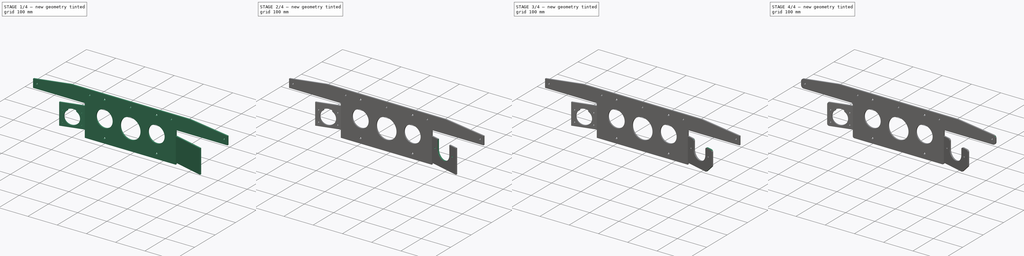
[diagram: build sequence overview — one tinted view per stage of 4, left to right]
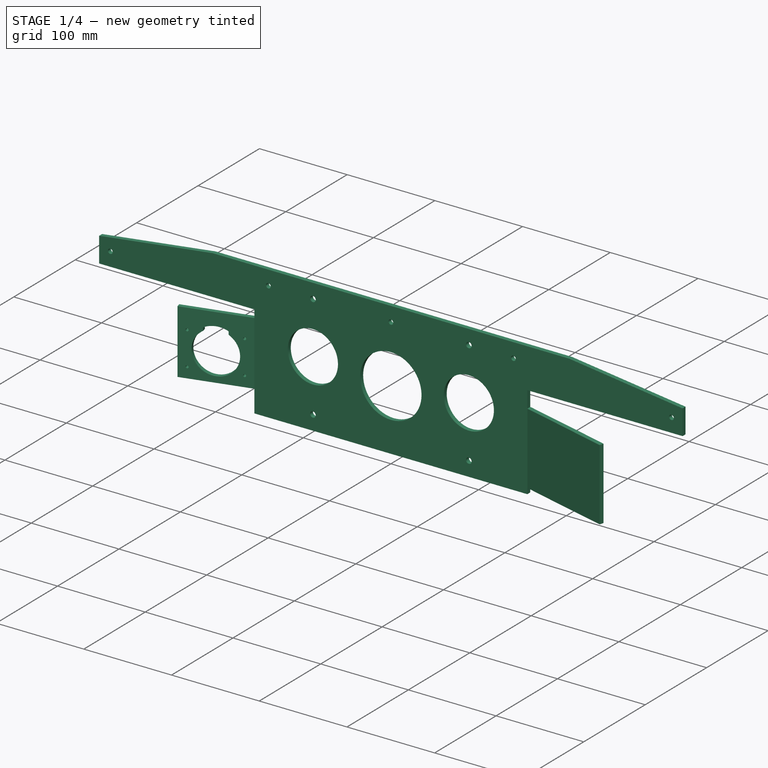
[diagram: stage 1 of 4 — iso view after this stage's code; geometry added in this stage tinted green]
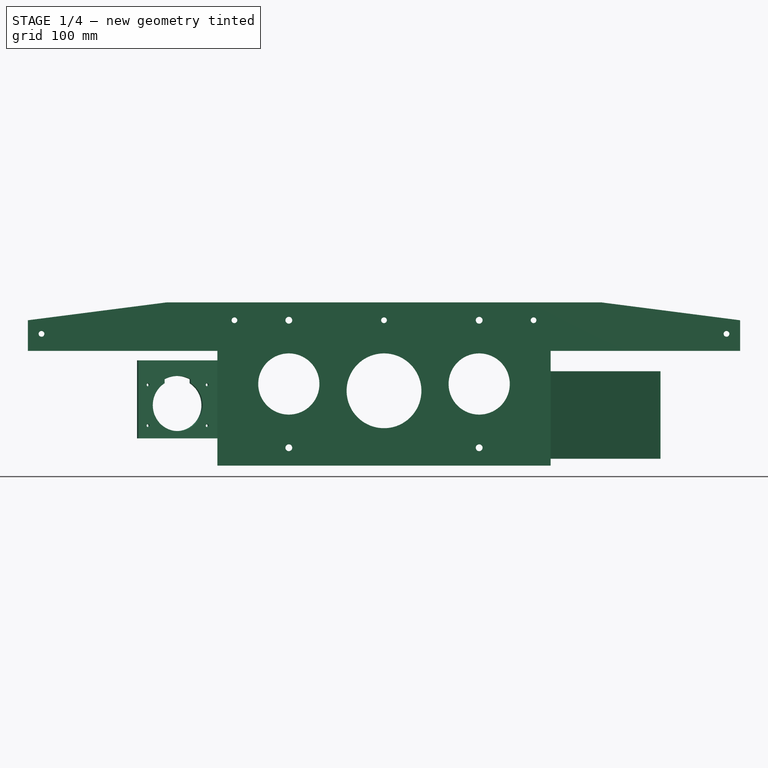
[diagram: stage 1 of 4 — front view after this stage's code; geometry added in this stage tinted green]
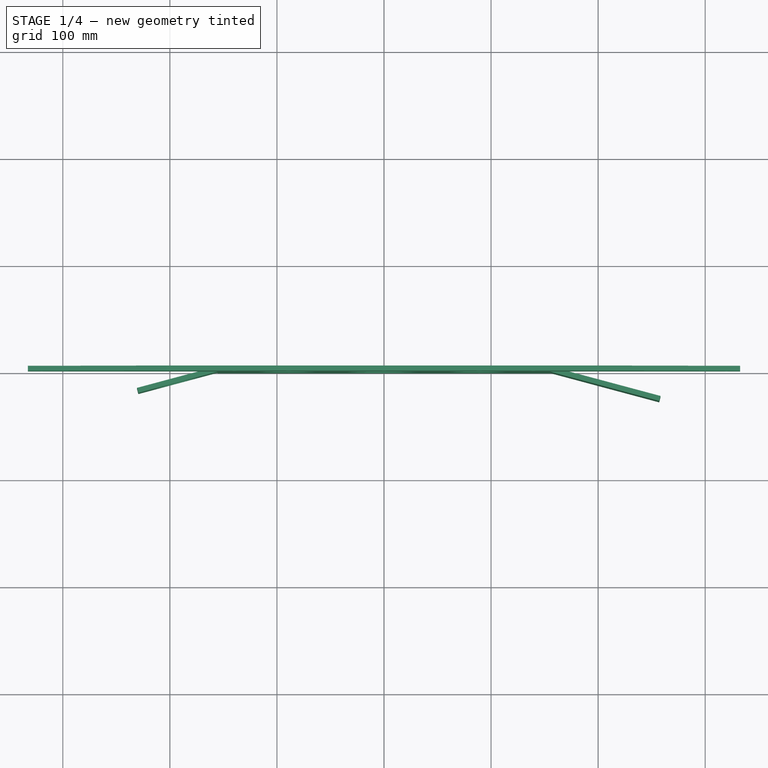
[diagram: stage 1 of 4 — top view after this stage's code; geometry added in this stage tinted green]
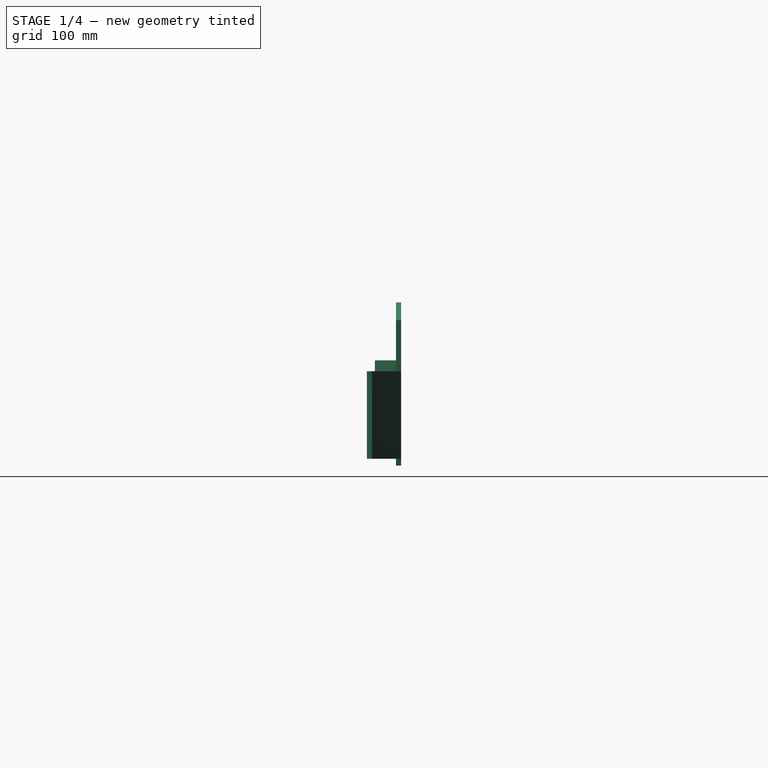
[diagram: stage 1 of 4 — right view after this stage's code; geometry added in this stage tinted green]
FCSTD DOCUMENT  (FreeCAD 2023.131R26244 +5365 (Git))
Label: dodge licence plate plugs holderr
License: All rights reserved
LicenseURL: http://en.wikipedia.org/wiki/All_rights_reserved
objects: PartDesign::Fillet×5, Sketcher::SketchObject×3, PartDesign::FeaturePython×3, PartDesign::Pocket×3, PartDesign::Hole×2, PartDesign::Chamfer×1, PartDesign::Body×1
note: 46 computed .brp shape members not serialized (recipe doc carries the construction recipe); baked Part::Feature solids carry a one-line shape summary decoded from their .brp

FEATURE [Sketcher::SketchObject] Sketch
  ArcFitTolerance = 1e-06
  AttachmentSupport = -> [XZ_Plane]
  ExternalBSplineMaxDegree = 5
  ExternalBSplineTolerance = 0.0001
  FixShape = 1
  FullyConstrained = false
  InternalTolerance = 1e-06
  InvalidShape = false
  MakeInternals = false
  MapMode = 5
  Placement = pos=(0,0,0) rot=(1,0,0;1.5708rad)
  Support = -> [XZ_Plane]
  TreeRank = 13
  ValidateShape = false
  sketch-geometry (25):
    g0: Circle CenterX=0 CenterY=28.575 CenterZ=0 NormalX=0 NormalY=0 NormalZ=1 AngleXU=0 Radius=2.667
    g1: Circle CenterX=-139.7 CenterY=28.575 CenterZ=0 NormalX=0 NormalY=0 NormalZ=1 AngleXU=0 Radius=2.667
    g2: Circle CenterX=139.7 CenterY=28.575 CenterZ=0 NormalX=0 NormalY=0 NormalZ=1 AngleXU=0 Radius=2.667
    g3: Circle CenterX=-319.888 CenterY=15.875 CenterZ=0 NormalX=0 NormalY=0 NormalZ=1 AngleXU=0 Radius=2.667
    g4: Circle CenterX=319.888 CenterY=15.875 CenterZ=0 NormalX=0 NormalY=0 NormalZ=1 AngleXU=0 Radius=2.667
    g5: Circle CenterX=-88.9 CenterY=28.575 CenterZ=0 NormalX=0 NormalY=0 NormalZ=1 AngleXU=0 Radius=3.175
    g6: Circle CenterX=88.9 CenterY=28.575 CenterZ=0 NormalX=0 NormalY=0 NormalZ=1 AngleXU=0 Radius=3.175
    g7: Circle CenterX=88.9 CenterY=-90.5002 CenterZ=0 NormalX=0 NormalY=0 NormalZ=1 AngleXU=0 Radius=3.175
    g8: Circle CenterX=-88.9 CenterY=-90.5002 CenterZ=0 NormalX=0 NormalY=0 NormalZ=1 AngleXU=0 Radius=3.175
    g9: LineSegment StartX=-332.588 StartY=28.575 StartZ=0 EndX=-332.588 EndY=0 EndZ=0
    g10: LineSegment StartX=-332.588 StartY=0 StartZ=0 EndX=-155.575 EndY=0 EndZ=0
    g11: LineSegment StartX=-155.575 StartY=0 StartZ=0 EndX=-155.575 EndY=-107.163 EndZ=0
    g12: LineSegment StartX=-155.575 StartY=-107.163 StartZ=0 EndX=155.575 EndY=-107.163 EndZ=0
    g13: LineSegment StartX=155.575 StartY=-107.163 StartZ=0 EndX=155.575 EndY=0 EndZ=0
    g14: LineSegment StartX=155.575 StartY=0 StartZ=0 EndX=332.588 EndY=0 EndZ=0
    g15: LineSegment StartX=332.588 StartY=0 StartZ=0 EndX=332.588 EndY=28.575 EndZ=0
    g16: LineSegment [constr] StartX=-88.9 StartY=-90.5002 StartZ=0 EndX=-88.9 EndY=-107.163 EndZ=0
    g17: LineSegment [constr] StartX=-88.9 StartY=28.575 StartZ=0 EndX=-88.9 EndY=45.2374 EndZ=0
    g18: LineSegment StartX=-203.2 StartY=45.2374 StartZ=0 EndX=-332.588 EndY=28.575 EndZ=0
    g19: LineSegment StartX=332.588 StartY=28.575 StartZ=0 EndX=203.2 EndY=45.2374 EndZ=0
    g20: LineSegment StartX=203.2 StartY=45.2374 StartZ=0 EndX=-203.2 EndY=45.2374 EndZ=0
    g21: Circle CenterX=-88.9 CenterY=-30.9626 CenterZ=0 NormalX=0 NormalY=0 NormalZ=1 AngleXU=0 Radius=28.575
    g22: Circle CenterX=0 CenterY=-37.3126 CenterZ=0 NormalX=0 NormalY=0 NormalZ=1 AngleXU=0 Radius=34.925
    g23: Circle CenterX=88.9 CenterY=-30.9626 CenterZ=0 NormalX=0 NormalY=0 NormalZ=1 AngleXU=0 Radius=28.575
    g24: LineSegment [constr] StartX=-222.052 StartY=-30.9626 StartZ=0 EndX=256.665 EndY=-30.9626 EndZ=0
  constraints (65):
    c: PointOnObject(g0,g-2)
    c: Equal(g3,g1)
    c: Equal(g1,g0)
    c: Equal(g0,g2)
    c: Equal(g2,g4)
    c: Diameter(g2) = 5.334
    c: Symmetric(g1,g2,g0)
    c: Horizontal(g2,g1)
    c: Symmetric(g3,g4,g-2)
    c: Distance(g-1,g0) = 28.575
    c: DistanceY(g-1,g4) = 15.875
    c: Distance(g2,g0) = 139.7
    c: Distance(g3,g4) = 639.775
    c: Symmetric(g5,g6,g-2)
    c: Vertical(g6,g7)
    c: Horizontal(g7,g8)
    c: Vertical(g8,g5)
    c: Equal(g8,g7)
    c: Equal(g7,g6)
    c: Equal(g6,g5)
    c: Distance(g5,g6) = 177.8
    c: Distance(g6,g7) = 119.075
    c: Horizontal(g6,g2)
    c: Diameter(g5) = 6.35
    c: Coincident(g9,g10)
    c: Coincident(g10,g11)
    c: Coincident(g11,g12)
    c: Coincident(g12,g13)
    c: Coincident(g13,g14)
    c: Coincident(g14,g15)
    c: Coincident(g15,g19)
    c: Coincident(g18,g9)
    c: Vertical(g9)
    c: Horizontal(g10)
    c: Horizontal(g12)
    c: Vertical(g13)
    c: Vertical(g11)
    c: Symmetric(g14,g9,g-2)
    c: Symmetric(g10,g13,g-2)
    c: Distance(g12) = 311.15
    c: Coincident(g16,g8)
    c: PointOnObject(g16,g12)
    c: Coincident(g17,g5)
    c: Vertical(g17)
    c: Vertical(g16)
    c: Equal(g16,g17)
    c: PointOnObject(g10,g-1)
    c: Coincident(g20,g18)
    c: Coincident(g19,g20)
    c: Distance(g12,g20) = 152.4
    c: PointOnObject(g17,g20)
    c: Symmetric(g18,g19,g-2)
    c: Distance(g18,g19) = 406.4
    c: Distance(g9) = 28.575
    c: Distance(g3,g9) = 12.7
    c: PointOnObject(g22,g-2)
    c: Symmetric(g21,g23,g-2)
    c: Equal(g23,g21)
    c: PointOnObject(g21,g24)
    c: Symmetric(g5,g8,g24)
    c: Distance(g21,g23) = 177.8
    c: Diameter(g21) = 57.15
    c: Diameter(g22) = 69.85
    c: Distance(g22,g24) = 6.35
    c: Symmetric(g15,g9,g-2)
FEATURE [PartDesign::FeaturePython] BaseBend  # WARN: FeaturePython — macro-defined, semantics opaque (R4)
  BendSide = 0
  BendSketch = -> Sketch
  FixShape = 1
  InvalidShape = false
  MidPlane = false
  NewSolid = false
  Reverse = false
  Suppress = false
  TreeRank = 14
  ValidateShape = false
  length = 100
  radius = 1
  thickness = 4.7625
FEATURE [PartDesign::FeaturePython] Bend  # WARN: FeaturePython — macro-defined, semantics opaque (R4)
  AutoMiter = true
  BaseFeature = -> BaseBend
  BendType = 0
  FixShape = 1
  InvalidShape = false
  LengthList = [104.775]
  LengthSpec = 0
  NewSolid = false
  ReliefFactor = 0.7
  Suppress = false
  TreeRank = 15
  UseReliefFactor = false
  ValidateShape = false
  angle = 15
  baseObject = -> BaseBend [Face5]
  bendAList = [15]
  extend1 = 0
  extend2 = 0
  gap1 = 6.35
  gap2 = 19.05
  invert = true
  kfactor = 0.5
  length = 104.775
  maxExtendDist = 5
  minGap = 0.2
  minReliefGap = 1
  miterangle1 = 0
  miterangle2 = 0
  offset = 0
  radius = 1
  reliefType = 0
  reliefd = 0
  reliefw = 0
  sketchflip = false
  sketchinvert = false
  unfold = false
FEATURE [PartDesign::FeaturePython] Bend001  # WARN: FeaturePython — macro-defined, semantics opaque (R4)
  AutoMiter = true
  BaseFeature = -> Bend
  BendType = 0
  FixShape = 1
  InvalidShape = false
  LengthList = [76.2]
  LengthSpec = 0
  NewSolid = false
  ReliefFactor = 0.7
  Suppress = false
  TreeRank = 16
  UseReliefFactor = false
  ValidateShape = false
  angle = 15
  baseObject = -> Bend [Face7]
  bendAList = [15]
  extend1 = 0
  extend2 = 0
  gap1 = 8.89
  gap2 = 25.4
  invert = true
  kfactor = 0.5
  length = 76.2
  maxExtendDist = 5
  minGap = 0.2
  minReliefGap = 1
  miterangle1 = 0
  miterangle2 = 0
  offset = 0
  radius = 1
  reliefType = 0
  reliefd = 0
  reliefw = 0
  sketchflip = false
  sketchinvert = false
  unfold = false
FEATURE [Sketcher::SketchObject] Sketch001
  ArcFitTolerance = 1e-06
  AttachmentSupport = -> [Bend001]
  ExternalBSplineMaxDegree = 5
  ExternalBSplineTolerance = 0.0001
  ExternalGeometry = -> [Bend001]
  FixShape = 1
  FullyConstrained = true
  InternalTolerance = 1e-06
  InvalidShape = false
  MakeInternals = false
  MapMode = 5
  Placement = pos=(-10.4304,38.9267,-8.6e-15) rot=(0.983106,0.129428,0.129428;1.58783rad)
  Support = -> [Bend001]
  TreeRank = 17
  ValidateShape = false
  sketch-geometry (13):
    g0: ArcOfCircle CenterX=-188.633 CenterY=-50.8 CenterZ=0 NormalX=0 NormalY=0 NormalZ=1 AngleXU=0 Radius=24.13 StartAngle=2.12506 EndAngle=7.29972
    g1: Circle CenterX=-217.208 CenterY=-31.75 CenterZ=0 NormalX=0 NormalY=0 NormalZ=1 AngleXU=0 Radius=1.4859
    g2: Circle CenterX=-160.058 CenterY=-31.75 CenterZ=0 NormalX=0 NormalY=0 NormalZ=1 AngleXU=0 Radius=1.4859
    g3: Circle CenterX=-217.208 CenterY=-69.85 CenterZ=0 NormalX=0 NormalY=0 NormalZ=1 AngleXU=0 Radius=1.4859
    g4: Circle CenterX=-160.058 CenterY=-69.85 CenterZ=0 NormalX=0 NormalY=0 NormalZ=1 AngleXU=0 Radius=1.4859
    g5: ArcOfCircle CenterX=-188.633 CenterY=-50.8 CenterZ=0 NormalX=0 NormalY=0 NormalZ=1 AngleXU=0 Radius=27.305 StartAngle=1.08703 EndAngle=2.05456
    g6: LineSegment StartX=-175.933 StartY=-26.6283 StartZ=0 EndX=-175.933 EndY=-30.2825 EndZ=0
    g7: LineSegment StartX=-201.333 StartY=-26.6283 StartZ=0 EndX=-201.333 EndY=-30.2825 EndZ=0
    g8: LineSegment [constr] StartX=-224.193 StartY=-10.414 StartZ=0 EndX=-153.073 EndY=-10.414 EndZ=0
    g9: LineSegment [constr] StartX=-153.073 StartY=-10.414 StartZ=0 EndX=-153.073 EndY=-77.47 EndZ=0
    g10: LineSegment [constr] StartX=-153.073 StartY=-77.47 StartZ=0 EndX=-224.193 EndY=-77.47 EndZ=0
    g11: LineSegment [constr] StartX=-224.193 StartY=-77.47 StartZ=0 EndX=-224.193 EndY=-10.414 EndZ=0
    g12: GeomPoint [constr] X=-188.633 Y=-10.414 Z=0
  constraints (36):
    c: Vertical(g4,g2)
    c: Symmetric(g4,g1,g0)
    c: Symmetric(g2,g3,g0)
    c: Horizontal(g4,g3)
    c: Distance(g4,g3) = 57.15
    c: Distance(g4,g2) = 38.1
    c: Diameter(g0) = 48.26
    c: Equal(g3,g1)
    c: Equal(g1,g2)
    c: Equal(g2,g4)
    c: Coincident(g5,g0)
    c: Horizontal(g5,g5)
    c: Distance(g5,g5) = 25.4
    c: Diameter(g5) = 54.61
    c: Coincident(g6,g5)
    c: Coincident(g7,g5)
    c: Coincident(g0,g6)
    c: Coincident(g0,g7)
    c: Vertical(g7)
    c: Vertical(g6)
    c: DistanceY(g-1,g0) = -50.8
    c: Diameter(g2) = 2.9718
    c: Coincident(g8,g9)
    c: Coincident(g9,g10)
    c: Coincident(g10,g11)
    c: Coincident(g11,g8)
    c: Horizontal(g8)
    c: Horizontal(g10)
    c: Vertical(g9)
    c: Vertical(g11)
    c: Distance(g10) = 71.12
    c: Distance(g9) = 67.056
    c: Distance(g3,g10) = 7.62
    c: Symmetric(g8,g8,g12)
    c: Vertical(g12,g0)
    c: DistanceX(g8,g-3) = 2.54
FEATURE [PartDesign::Pocket] Pocket
  AddSubType = 1
  AutoTaperInnerAngle = true
  BaseFeature = -> Bend001
  CheckUpToFaceLimits = true
  ClaimChildren = false
  Fit = 0
  FitJoin = 0
  FixShape = 1
  InnerFit = 0
  InnerFitJoin = 0
  InvalidShape = false
  Length = 5
  Length2 = 100
  Linearize = true
  NewSolid = false
  Profile = -> Sketch001
  Suppress = false
  TaperInnerAngle = 0
  TaperInnerAngleRev = 0
  TreeRank = 18
  Type = 0
  ValidateShape = false
  _ProfileBasedVersion = 1
  _Version = 1
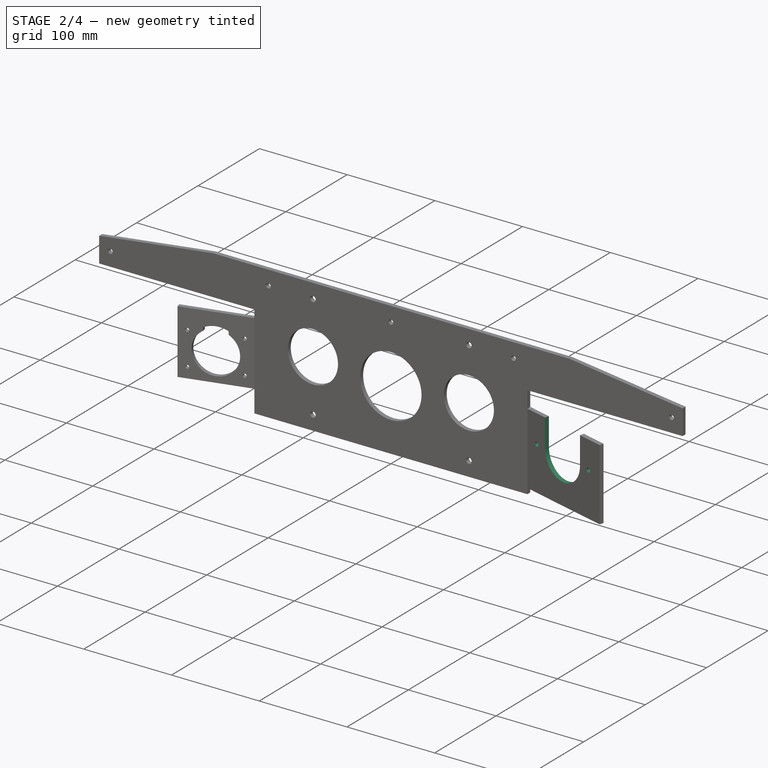
[diagram: stage 2 of 4 — iso view after this stage's code; geometry added in this stage tinted green]
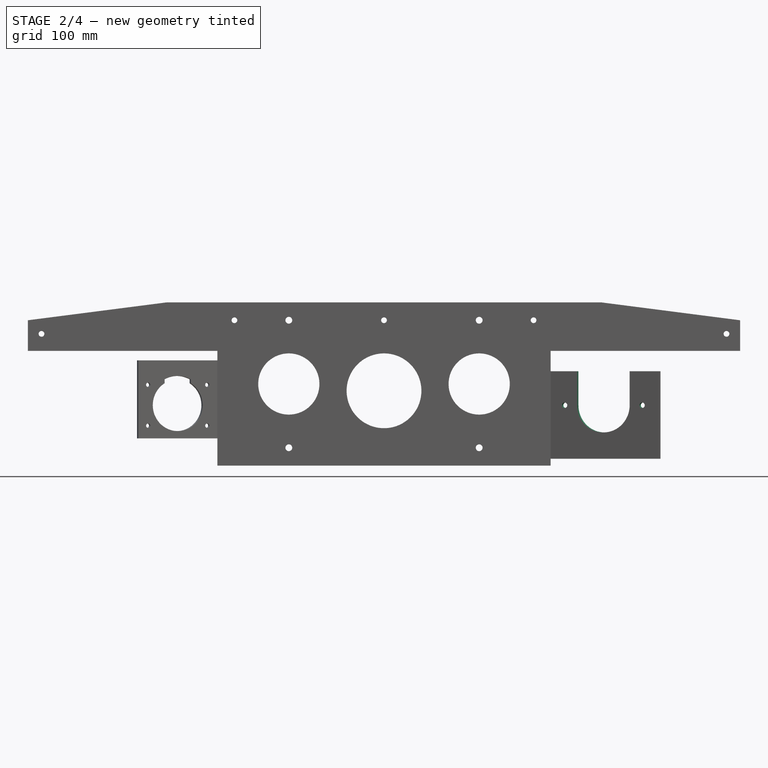
[diagram: stage 2 of 4 — front view after this stage's code; geometry added in this stage tinted green]
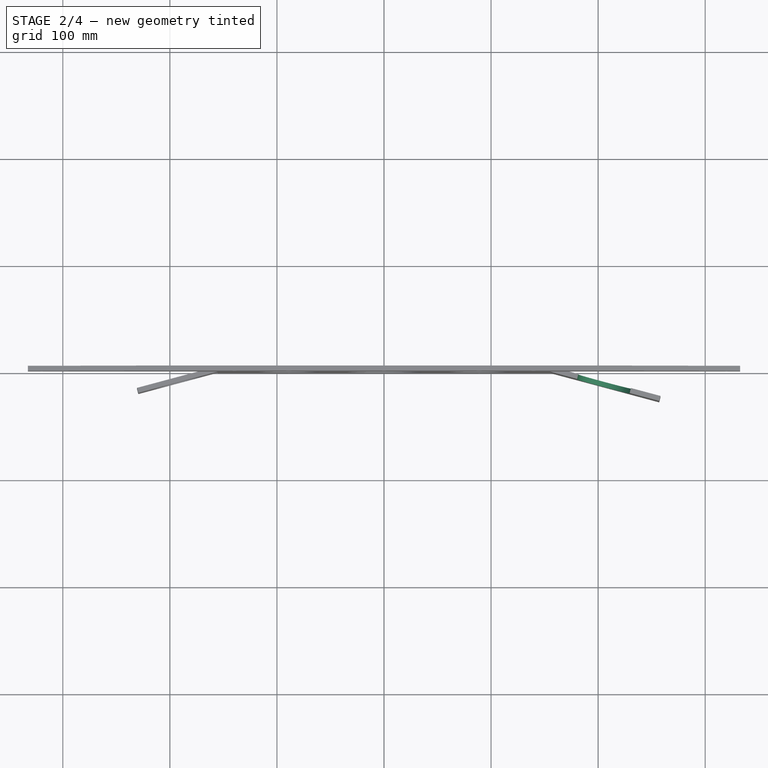
[diagram: stage 2 of 4 — top view after this stage's code; geometry added in this stage tinted green]
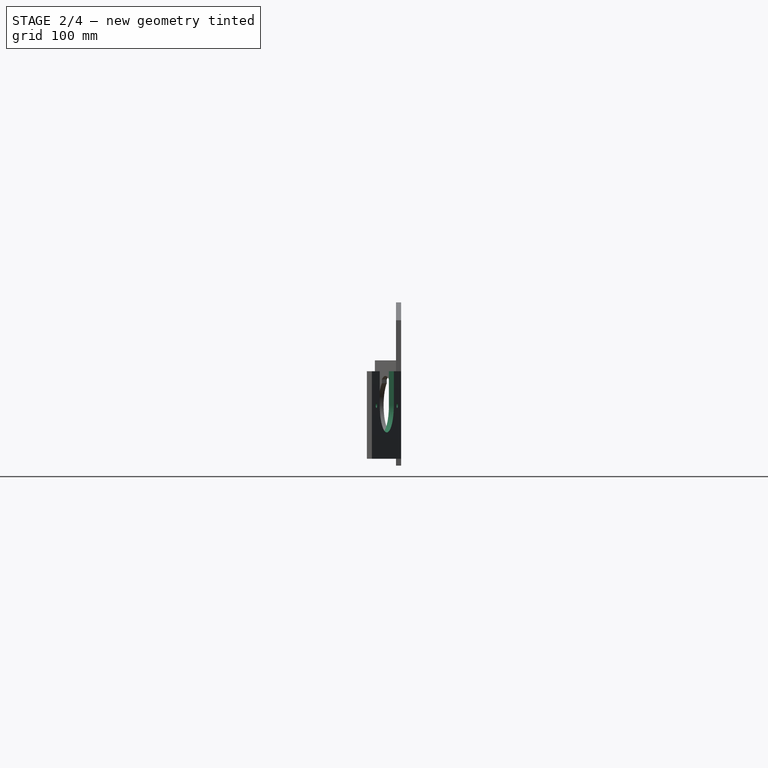
[diagram: stage 2 of 4 — right view after this stage's code; geometry added in this stage tinted green]
FEATURE [PartDesign::Hole] Hole
  AddSubType = 1
  BaseFeature = -> Pocket
  ClaimChildren = false
  CustomThreadClearance = 0
  Depth = 25
  DepthType = 0
  Diameter = 4.1
  DrillForDepth = false
  DrillPoint = 1
  DrillPointAngle = 118
  Fit = 0
  FitJoin = 0
  FixShape = 1
  HoleCutCountersinkAngle = 90
  HoleCutCustomValues = false
  HoleCutDepth = 0
  HoleCutDiameter = 0
  HoleCutType = 0
  InnerFit = 0
  InnerFitJoin = 0
  InvalidShape = false
  Linearize = true
  ModelThread = false
  NewSolid = false
  Profile = -> Pocket [Edge103,Edge98,Edge96,Edge97]
  Reversed = true
  Suppress = false
  Tapered = false
  TaperedAngle = 90
  ThreadClass = 0
  ThreadDepth = 25
  ThreadDepthType = 0
  ThreadDirection = 0
  ThreadFit = 0
  ThreadSize = 8
  ThreadType = 4
  Threaded = true
  TreeRank = 19
  UseCustomThreadClearance = false
  ValidateShape = false
  _ProfileBasedVersion = 1
FEATURE [Sketcher::SketchObject] Sketch002
  ArcFitTolerance = 1e-06
  AttachmentSupport = -> [Bend]
  ExternalBSplineMaxDegree = 5
  ExternalBSplineTolerance = 0.0001
  ExternalGeometry = -> [Bend]
  FixShape = 1
  FullyConstrained = true
  InternalTolerance = 1e-06
  InvalidShape = false
  MakeInternals = false
  MapMode = 5
  Placement = pos=(10.4304,38.9267,-8.6e-15) rot=(0.983106,-0.129428,-0.129428;1.58783rad)
  Support = -> [Bend]
  TreeRank = 20
  ValidateShape = false
  sketch-geometry (6):
    g0: ArcOfCircle CenterX=201.333 CenterY=-50.8 CenterZ=0 NormalX=0 NormalY=0 NormalZ=1 AngleXU=0 Radius=25.4 StartAngle=3.14159 EndAngle=6.28319
    g1: LineSegment StartX=226.733 StartY=-50.8 StartZ=0 EndX=226.733 EndY=-2.54 EndZ=0
    g2: LineSegment StartX=226.733 StartY=-2.54 StartZ=0 EndX=175.933 EndY=-2.54 EndZ=0
    g3: LineSegment StartX=175.933 StartY=-2.54 StartZ=0 EndX=175.933 EndY=-50.8 EndZ=0
    g4: Circle CenterX=163.868 CenterY=-50.8 CenterZ=0 NormalX=0 NormalY=0 NormalZ=1 AngleXU=0 Radius=1.905
    g5: Circle CenterX=238.798 CenterY=-50.8 CenterZ=0 NormalX=0 NormalY=0 NormalZ=1 AngleXU=0 Radius=1.905
  constraints (16):
    c: Vertical(g1)
    c: Coincident(g2,g1)
    c: Horizontal(g2)
    c: Coincident(g3,g2)
    c: Vertical(g3)
    c: Tangent(g0,g1) = -1.5708
    c: Tangent(g0,g3) = -1.5708
    c: Symmetric(g5,g4,g0)
    c: Horizontal(g5,g4)
    c: Equal(g5,g4)
    c: Diameter(g4) = 3.81
    c: DistanceY(g-1,g0) = -50.8
    c: Distance(g4,g5) = 74.93
    c: Diameter(g0) = 50.8
    c: Distance(g1) = 48.26
    c: DistanceX(g-3,g0) = 50.8
FEATURE [PartDesign::Pocket] Pocket001
  AddSubType = 1
  AutoTaperInnerAngle = true
  BaseFeature = -> Hole
  CheckUpToFaceLimits = true
  ClaimChildren = false
  Fit = 0
  FitJoin = 0
  FixShape = 1
  InnerFit = 0
  InnerFitJoin = 0
  InvalidShape = false
  Length = 5
  Length2 = 100
  Linearize = true
  NewSolid = false
  Profile = -> Sketch002
  Suppress = false
  TaperInnerAngle = 0
  TaperInnerAngleRev = 0
  TreeRank = 21
  Type = 0
  ValidateShape = false
  _ProfileBasedVersion = 1
  _Version = 1
FEATURE [PartDesign::Hole] Hole001
  AddSubType = 1
  BaseFeature = -> Pocket001
  ClaimChildren = false
  CustomThreadClearance = 0
  Depth = 25
  DepthType = 0
  Diameter = 5.1
  DrillForDepth = false
  DrillPoint = 1
  DrillPointAngle = 118
  Fit = 0
  FitJoin = 0
  FixShape = 1
  HoleCutCountersinkAngle = 90
  HoleCutCustomValues = false
  HoleCutDepth = 0
  HoleCutDiameter = 0
  HoleCutType = 0
  InnerFit = 0
  InnerFitJoin = 0
  InvalidShape = false
  Linearize = true
  ModelThread = false
  NewSolid = false
  Profile = -> Sketch002 [Edge5,Edge6]
  Suppress = false
  Tapered = false
  TaperedAngle = 90
  ThreadClass = 0
  ThreadDepth = 25
  ThreadDepthType = 0
  ThreadDirection = 0
  ThreadFit = 0
  ThreadSize = 9
  ThreadType = 3
  Threaded = true
  TreeRank = 22
  UseCustomThreadClearance = false
  ValidateShape = false
  _ProfileBasedVersion = 1
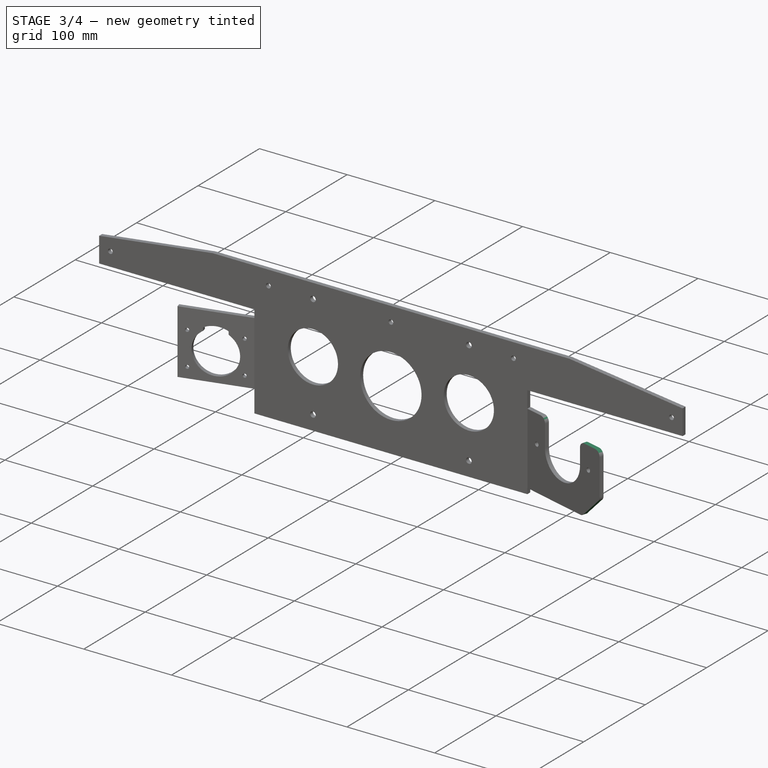
[diagram: stage 3 of 4 — iso view after this stage's code; geometry added in this stage tinted green]
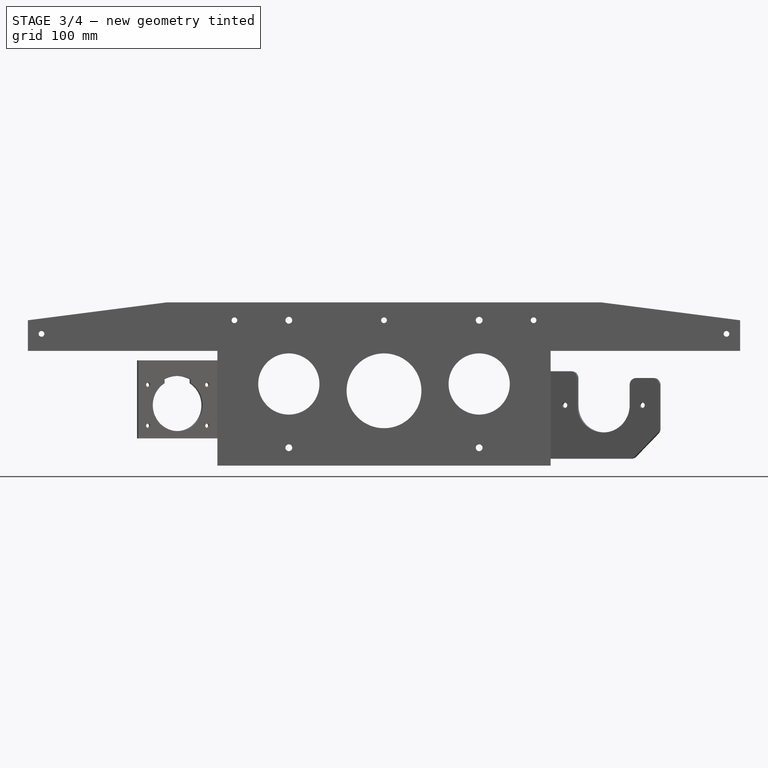
[diagram: stage 3 of 4 — front view after this stage's code; geometry added in this stage tinted green]
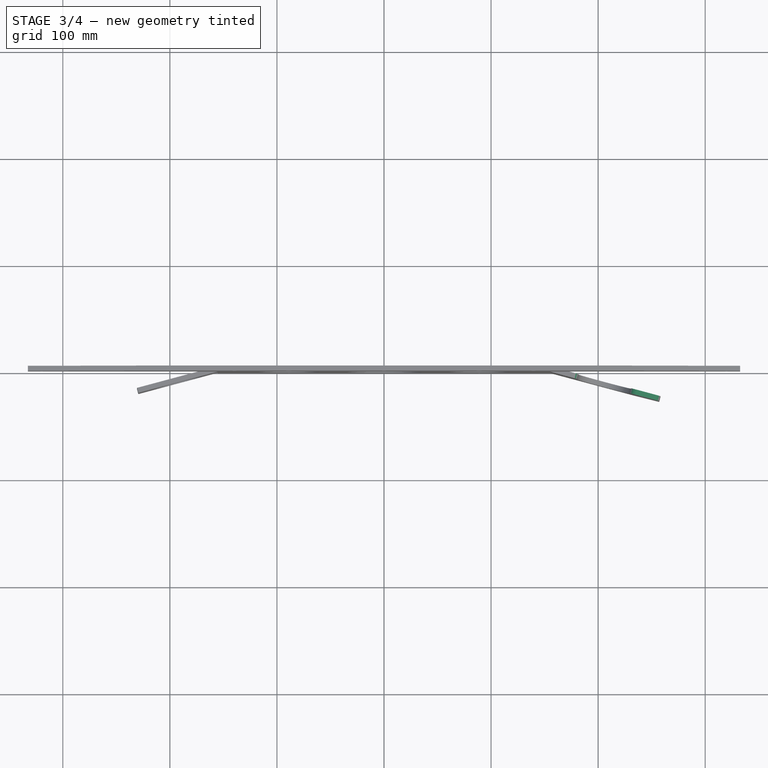
[diagram: stage 3 of 4 — top view after this stage's code; geometry added in this stage tinted green]
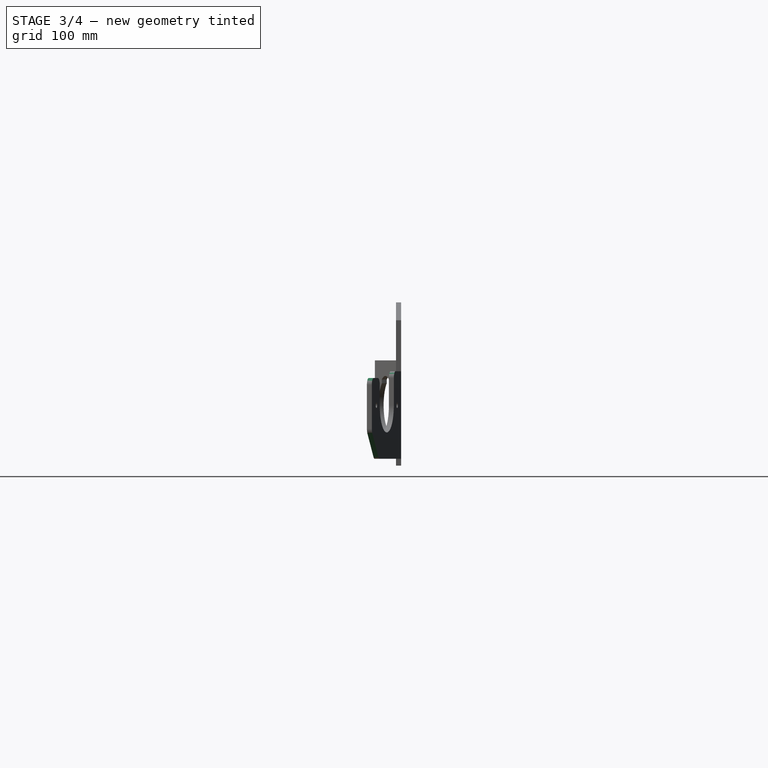
[diagram: stage 3 of 4 — right view after this stage's code; geometry added in this stage tinted green]
FEATURE [PartDesign::Chamfer] Chamfer
  AddSubType = 0
  Angle = 45
  Base = -> Hole001 [Edge145]
  BaseFeature = -> Hole001
  ChamferType = 0
  FixShape = 1
  FlipDirection = false
  InvalidShape = false
  NewSolid = false
  Size = 25.4
  Size2 = 1
  SupportTransform = false
  Suppress = false
  TreeRank = 23
  ValidateShape = false
FEATURE [PartDesign::Pocket] Pocket002
  AddSubType = 1
  AutoTaperInnerAngle = true
  BaseFeature = -> Chamfer
  CheckUpToFaceLimits = true
  ClaimChildren = false
  Fit = 0
  FitJoin = 0
  FixShape = 1
  InnerFit = 0
  InnerFitJoin = 0
  InvalidShape = false
  Length = 6.35
  Length2 = 100
  Linearize = true
  NewSolid = false
  Profile = -> Chamfer [Face7]
  Suppress = false
  TaperInnerAngle = 0
  TaperInnerAngleRev = 0
  TreeRank = 24
  Type = 0
  ValidateShape = false
  _ProfileBasedVersion = 1
  _Version = 1
FEATURE [PartDesign::Fillet] Fillet
  AddSubType = 0
  Base = -> Pocket002 [Edge28,Edge25,Edge20,Edge12,Edge30]
  BaseFeature = -> Pocket002
  FixShape = 1
  InvalidShape = false
  NewSolid = false
  Radius = 6.35
  SupportTransform = false
  Suppress = false
  TreeRank = 25
  ValidateShape = false
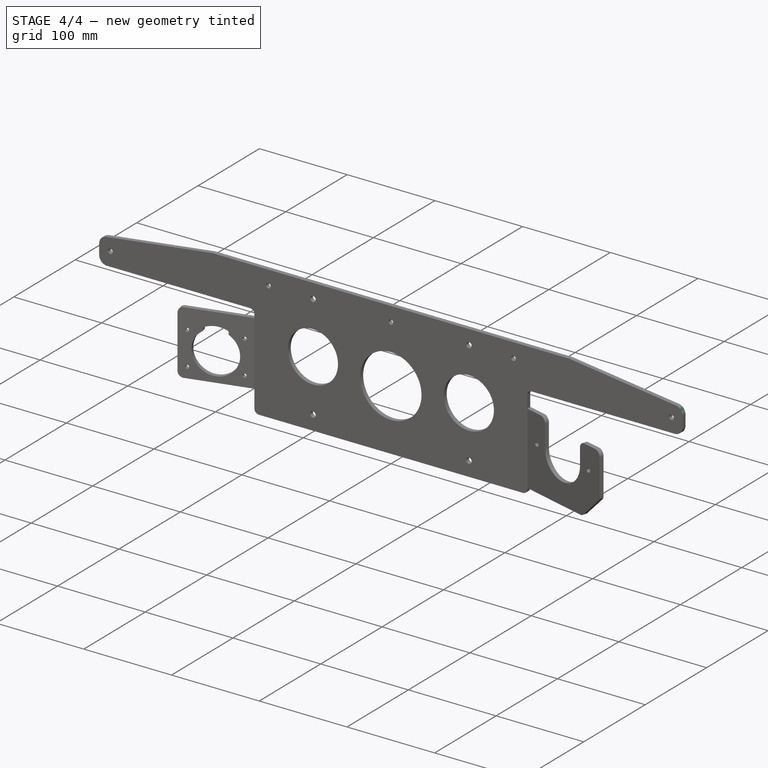
[diagram: stage 4 of 4 — iso view after this stage's code; geometry added in this stage tinted green]
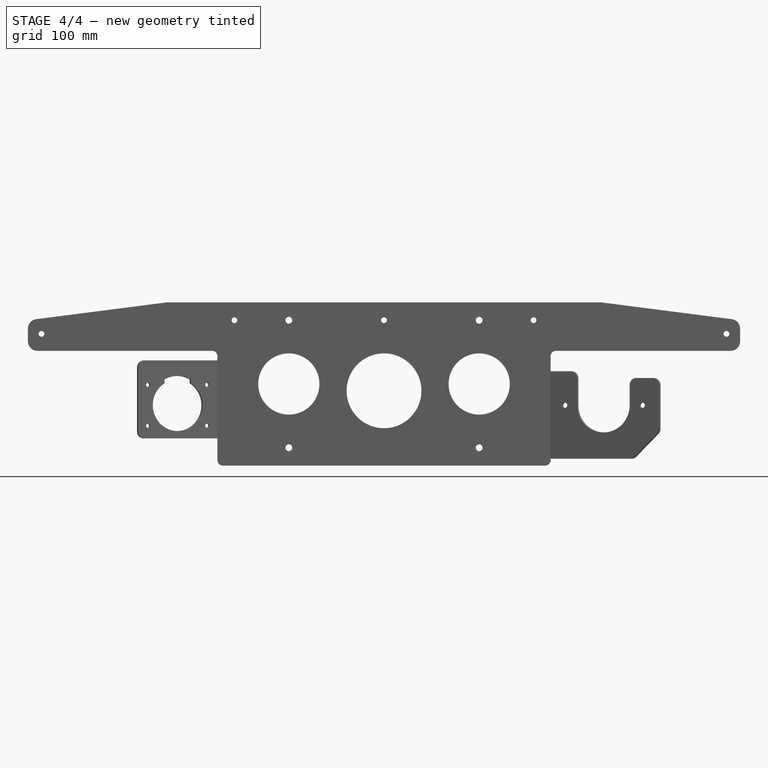
[diagram: stage 4 of 4 — front view after this stage's code; geometry added in this stage tinted green]
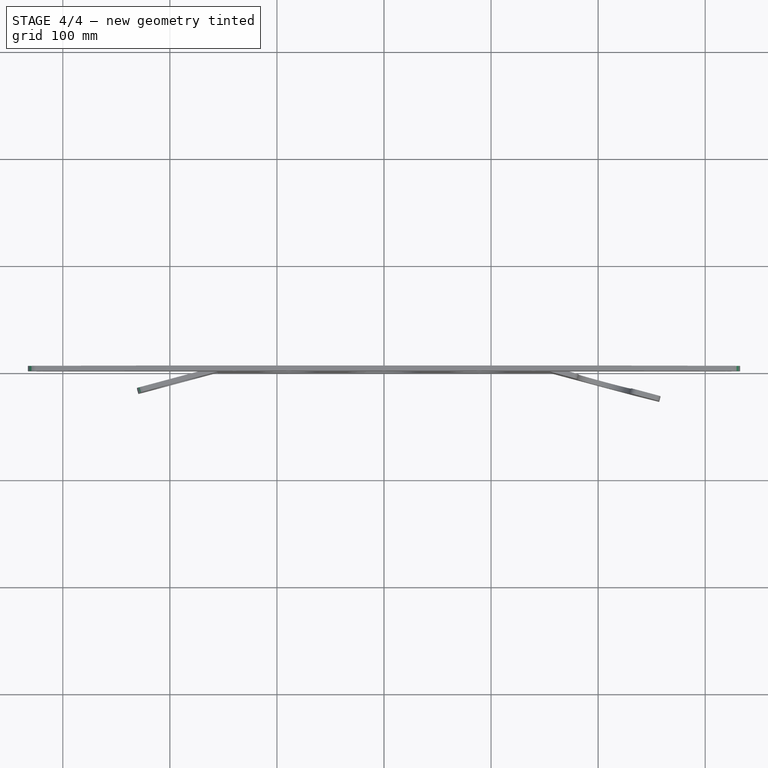
[diagram: stage 4 of 4 — top view after this stage's code; geometry added in this stage tinted green]
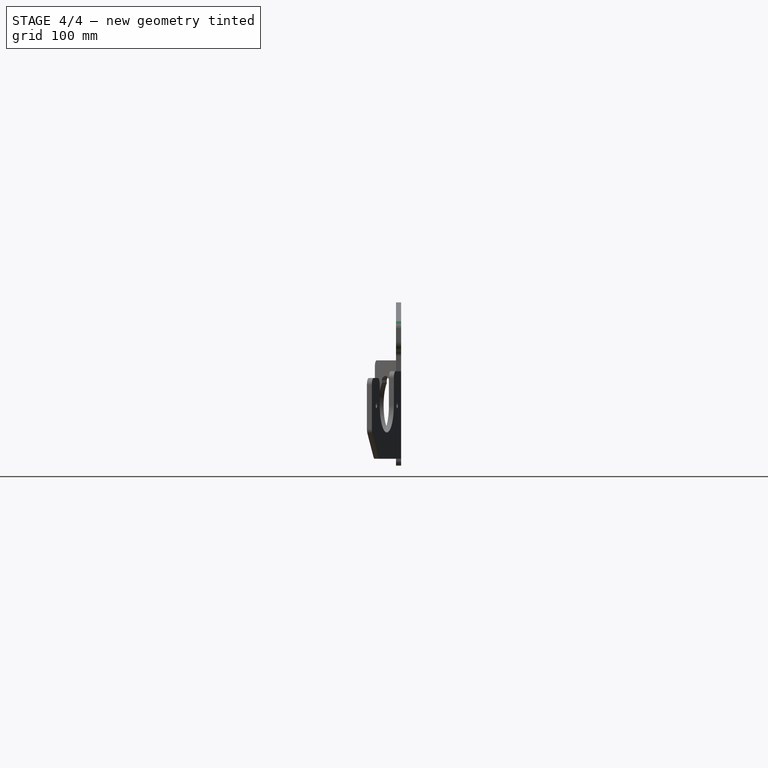
[diagram: stage 4 of 4 — right view after this stage's code; geometry added in this stage tinted green]
FEATURE [PartDesign::Fillet] Fillet001
  AddSubType = 0
  Base = -> Fillet [Edge83,Edge84,Edge96,Edge89]
  BaseFeature = -> Fillet
  FixShape = 1
  InvalidShape = false
  NewSolid = false
  Radius = 5.08
  SupportTransform = false
  Suppress = false
  TreeRank = 26
  ValidateShape = false
FEATURE [PartDesign::Fillet] Fillet002
  AddSubType = 0
  Base = -> Fillet001 [Edge50,Edge54,Edge32,Edge36,Edge40,Edge45]
  BaseFeature = -> Fillet001
  FixShape = 1
  InvalidShape = false
  NewSolid = false
  Radius = 8.89
  SupportTransform = false
  Suppress = false
  TreeRank = 27
  ValidateShape = false
FEATURE [PartDesign::Fillet] Fillet003
  AddSubType = 0
  Base = -> Fillet002 [Edge160,Edge166,Edge162,Edge164]
  BaseFeature = -> Fillet002
  FixShape = 1
  InvalidShape = false
  NewSolid = false
  Radius = 0.9906
  SupportTransform = false
  Suppress = false
  TreeRank = 28
  ValidateShape = false
FEATURE [PartDesign::Fillet] Fillet004
  AddSubType = 0
  Base = -> Fillet003 [Edge36,Edge40]
  BaseFeature = -> Fillet003
  FixShape = 1
  InvalidShape = false
  NewSolid = false
  Radius = 6.35
  SupportTransform = false
  Suppress = false
  TreeRank = 29
  ValidateShape = false
FEATURE [PartDesign::Body] Body
  AutoGroupSolids = false
  ClaimAllChildren = false
  ExportMode = 0
  FixShape = 1
  Group = -> [Sketch,BaseBend,Bend,Bend001,Sketch001,Pocket,Hole,Sketch002,Pocket001,Hole001,Chamfer,Pocket002,Fillet,Fillet001,Fillet002,Fillet003,Fillet004]
  InvalidShape = false
  Origin = -> Origin
  Tip = -> Fillet004
  TreeRank = 12
  ValidateShape = false
  _ExportChildren = -> [BaseBend,Bend,Bend001,Pocket,Hole,Pocket001,Hole001,Chamfer,Pocket002,Fillet,Fillet001,Fillet002,Fillet003,Fillet004]
  _GroupVersion = 1
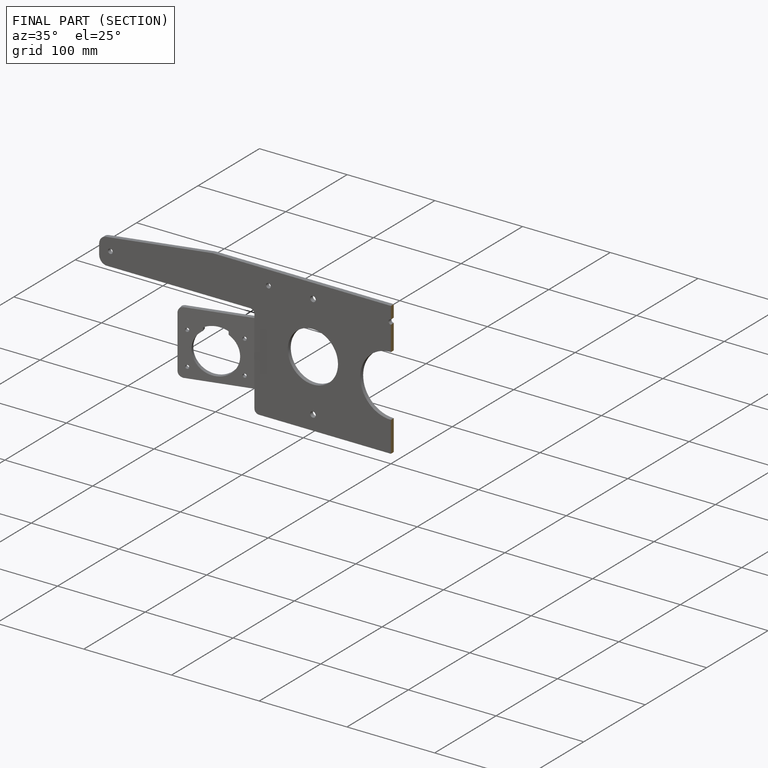
[diagram: finished part — half-section view (interior)]
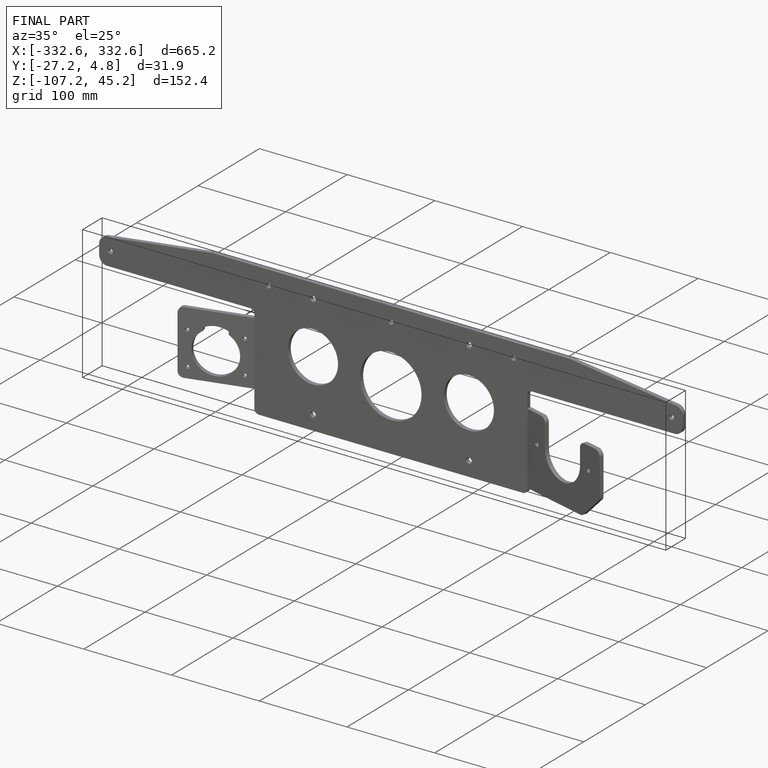
[diagram: finished part — iso view with bounding-box wireframe]
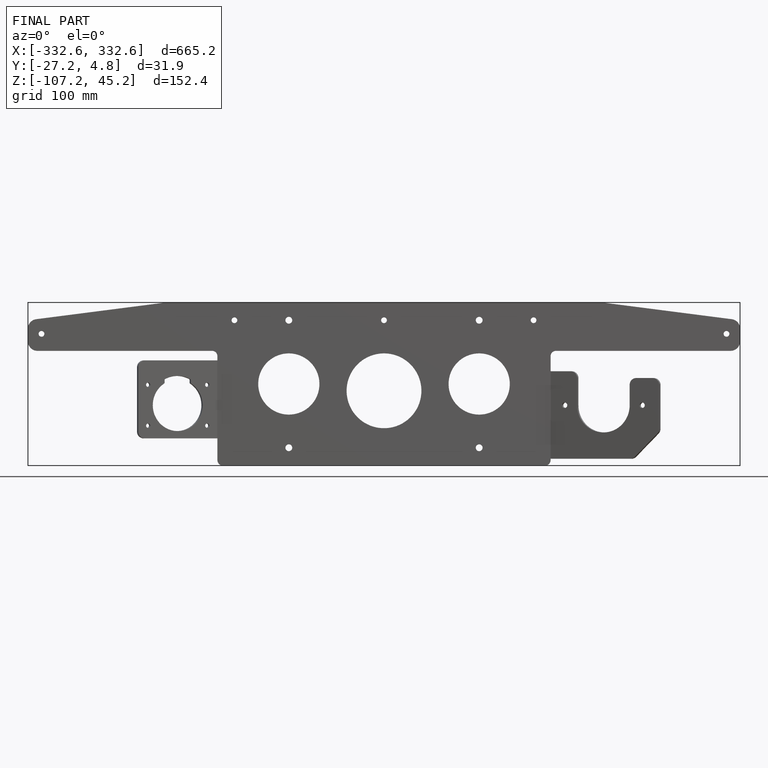
[diagram: finished part — front view with bounding-box wireframe]
